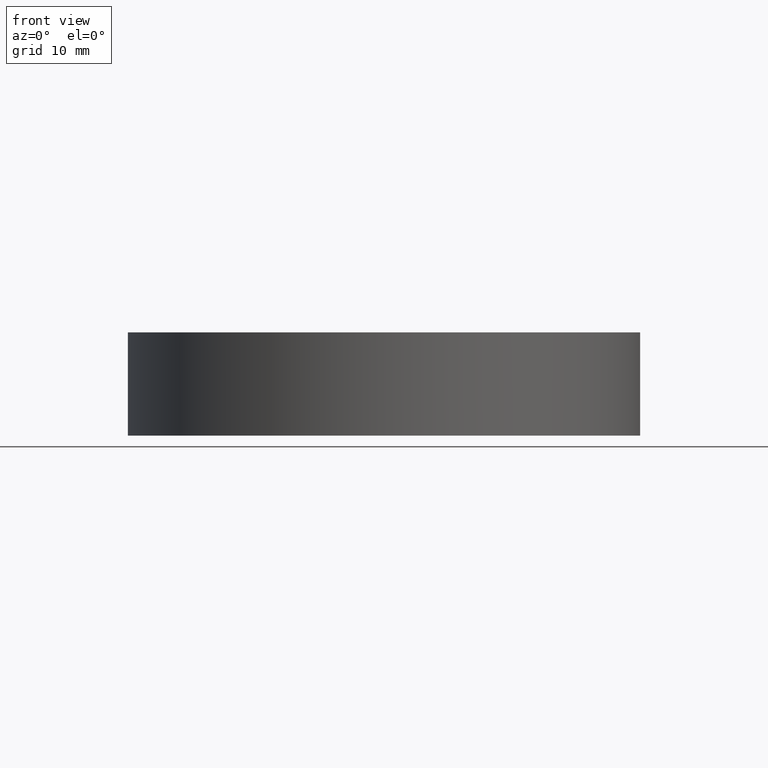
[diagram: clean part render]
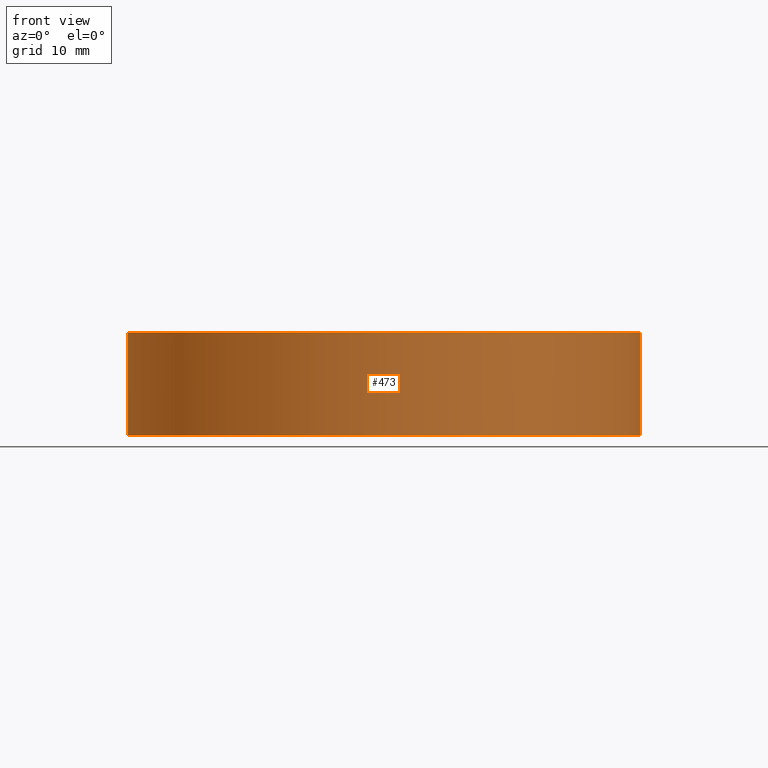
[diagram: same view with one face highlighted and labeled with its STEP entity id]
A machine part, front view. The second image highlights one B-rep face of the part: STEP entity #473.
In plain terms, the highlighted cylindrical surface (partial cylindrical patch) has radius 29.75 mm, axis along (-0, -0, -1).
Its self-contained STEP definition (entity closure, byte-faithful):
#6 = DIRECTION ( 'NONE',  ( -0.0000000000000000000, -0.0000000000000000000, -1.000000000000000000 ) ) ;
#18 = DIRECTION ( 'NONE',  ( 0.0000000000000000000, 0.0000000000000000000, 1.000000000000000000 ) ) ;
#23 = DIRECTION ( 'NONE',  ( 1.000000000000000000, 0.0000000000000000000, 0.0000000000000000000 ) ) ;
#34 = CARTESIAN_POINT ( 'NONE',  ( 29.75000000000000400, 3.643324227463376200E-015, 6.000000000000000000 ) ) ;
#39 = CARTESIAN_POINT ( 'NONE',  ( 0.0000000000000000000, 0.0000000000000000000, -6.000000000000000000 ) ) ;
#48 = CARTESIAN_POINT ( 'NONE',  ( -29.75000000000000400, 0.0000000000000000000, -6.000000000000000000 ) ) ;
#49 = DIRECTION ( 'NONE',  ( 0.0000000000000000000, 0.0000000000000000000, 1.000000000000000000 ) ) ;
#77 = CYLINDRICAL_SURFACE ( 'NONE', #187, 29.75000000000000400 ) ;
#78 = FACE_OUTER_BOUND ( 'NONE', #453, .T. ) ;
#117 = VECTOR ( 'NONE', #189, 1000.000000000000000 ) ;
#118 = LINE ( 'NONE', #444, #117 ) ;
#119 = CIRCLE ( 'NONE', #227, 29.75000000000000400 ) ;
#132 = LINE ( 'NONE', #34, #138 ) ;
#134 = CIRCLE ( 'NONE', #243, 29.75000000000000400 ) ;
#138 = VECTOR ( 'NONE', #162, 1000.000000000000000 ) ;
#153 = CARTESIAN_POINT ( 'NONE',  ( 0.0000000000000000000, 0.0000000000000000000, 6.000000000000000000 ) ) ;
#162 = DIRECTION ( 'NONE',  ( -0.0000000000000000000, -0.0000000000000000000, -1.000000000000000000 ) ) ;
#176 = ORIENTED_EDGE ( 'NONE', *, *, #424, .F. ) ;
#187 = AXIS2_PLACEMENT_3D ( 'NONE', #153, #6, #251 ) ;
#189 = DIRECTION ( 'NONE',  ( -0.0000000000000000000, -0.0000000000000000000, -1.000000000000000000 ) ) ;
#227 = AXIS2_PLACEMENT_3D ( 'NONE', #39, #18, #23 ) ;
#242 = DIRECTION ( 'NONE',  ( 1.000000000000000000, 0.0000000000000000000, 0.0000000000000000000 ) ) ;
#243 = AXIS2_PLACEMENT_3D ( 'NONE', #336, #49, #242 ) ;
#251 = DIRECTION ( 'NONE',  ( -1.000000000000000000, 0.0000000000000000000, 0.0000000000000000000 ) ) ;
#272 = ORIENTED_EDGE ( 'NONE', *, *, #441, .T. ) ;
#282 = VERTEX_POINT ( 'NONE', #310 ) ;
#286 = CARTESIAN_POINT ( 'NONE',  ( -29.75000000000000400, 0.0000000000000000000, 6.000000000000000000 ) ) ;
#301 = VERTEX_POINT ( 'NONE', #286 ) ;
#310 = CARTESIAN_POINT ( 'NONE',  ( 29.75000000000000400, 3.643324227463376200E-015, -6.000000000000000000 ) ) ;
#336 = CARTESIAN_POINT ( 'NONE',  ( 0.0000000000000000000, 0.0000000000000000000, 6.000000000000000000 ) ) ;
#353 = VERTEX_POINT ( 'NONE', #391 ) ;
#391 = CARTESIAN_POINT ( 'NONE',  ( 29.75000000000000400, 3.643324227463376200E-015, 6.000000000000000000 ) ) ;
#421 = ORIENTED_EDGE ( 'NONE', *, *, #430, .F. ) ;
#424 = EDGE_CURVE ( 'NONE', #353, #282, #132, .T. ) ;
#430 = EDGE_CURVE ( 'NONE', #301, #353, #134, .T. ) ;
#440 = EDGE_CURVE ( 'NONE', #301, #474, #118, .T. ) ;
#441 = EDGE_CURVE ( 'NONE', #474, #282, #119, .T. ) ;
#444 = CARTESIAN_POINT ( 'NONE',  ( -29.75000000000000400, 0.0000000000000000000, 6.000000000000000000 ) ) ;
#452 = ORIENTED_EDGE ( 'NONE', *, *, #440, .T. ) ;
#453 = EDGE_LOOP ( 'NONE', ( #176, #421, #452, #272 ) ) ;
#473 = ADVANCED_FACE ( 'NONE', ( #78 ), #77, .T. ) ;
#474 = VERTEX_POINT ( 'NONE', #48 ) ;